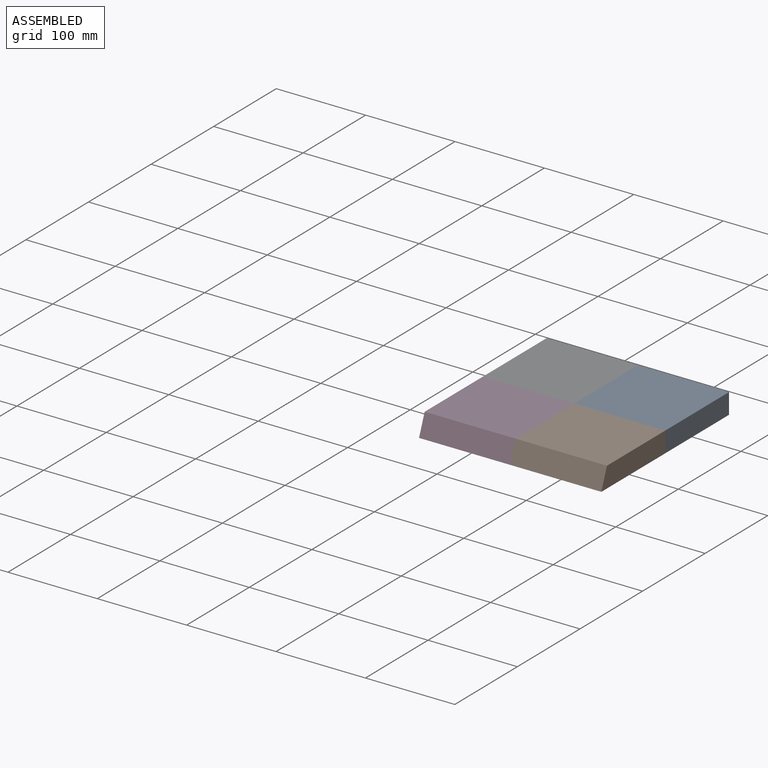
[diagram: assembled view]
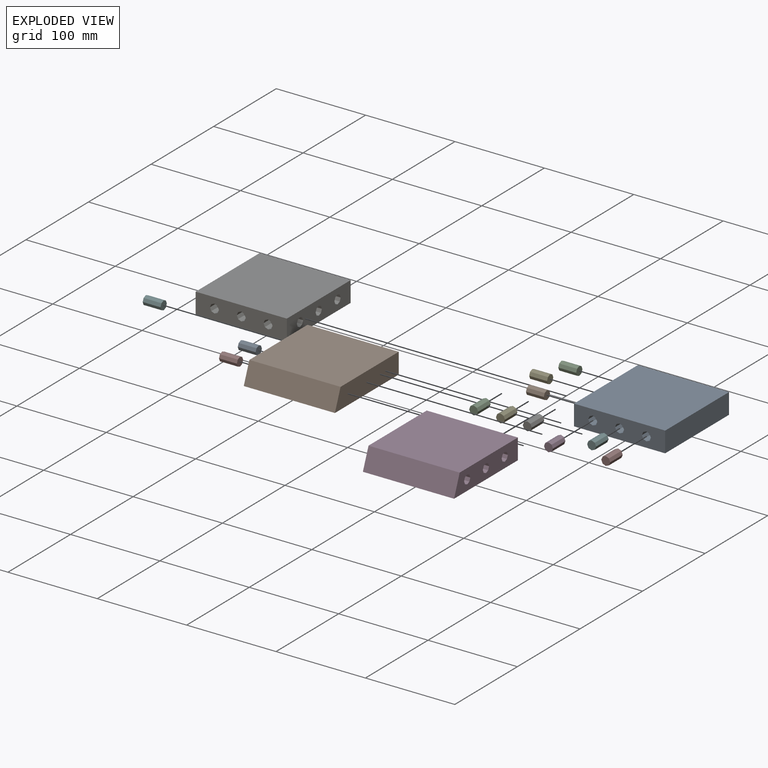
[diagram: exploded view]
GUIDED TOUR — MATED ASSEMBLY (Onshape document 5908cda357db5c10cc9995e8, AutoMate assembly 5908cda357db5c10cc9995e8_4f125725191da7e18022c977_9d6c4351536a8700f71dc5e9_default)

This assembly has 16 components, labeled P0..P15 below (a component is one placed occurrence of a part; the same part can appear more than once), held together by 15 mates. A mate is a constraint between two components; its type names the relative motion it leaves free:
  FASTENED — locks the two components together rigidly (no relative motion).
Axis/direction vectors are unit vectors and 'through' points are millimeter coordinates, both in the assembly's world frame.

MATES
  1. FASTENED "Fastened 12": P8 <-> P3, direction (-1.000, 0.000, 0.000) through (-61.00, -102.00, 0.00) mm
  2. FASTENED "Fastened 13": P13 <-> P3, direction (-1.000, 0.000, 0.000) through (-61.00, -72.00, 0.00) mm
  3. FASTENED "Fastened 4": P9 <-> P0, direction (1.000, 0.000, 0.000) through (-41.00, -30.00, 0.00) mm
  4. FASTENED "Fastened 7": P12 <-> P6, direction (-1.000, 0.000, 0.000) through (-61.00, 0.00, 0.00) mm
  5. FASTENED "Fastened 1": P11 <-> P0, direction (0.000, 1.000, 0.000) through (-30.00, -41.00, 0.00) mm
  6. FASTENED "Fastened 14": P8 <-> P1, direction (1.000, 0.000, 0.000) through (-41.00, -102.00, 0.00) mm
  7. FASTENED "Fastened 15": P4 <-> P3, direction (0.000, -1.000, 0.000) through (-102.00, -61.00, 0.00) mm
  8. FASTENED "Fastened 2": P5 <-> P0, direction (0.000, 1.000, 0.000) through (0.00, -41.00, 0.00) mm
  9. FASTENED "Fastened 11": P15 <-> P3, direction (-1.000, 0.000, 0.000) through (-61.00, -132.00, 0.00) mm
  10. FASTENED "Fastened 5": P12 <-> P0, direction (1.000, 0.000, 0.000) through (-41.00, 0.00, 0.00) mm
  11. FASTENED "Fastened 8": P14 <-> P6, direction (0.000, 1.000, 0.000) through (-72.00, -41.00, 0.00) mm
  12. FASTENED "Fastened 9": P4 <-> P6, direction (0.000, 1.000, 0.000) through (-102.00, -41.00, 0.00) mm
  13. FASTENED "Fastened 10": P10 <-> P6, direction (0.000, 1.000, 0.000) through (-132.00, -41.00, 0.00) mm
  14. FASTENED "Fastened 6": P2 <-> P0, direction (1.000, 0.000, 0.000) through (-41.00, 30.00, 0.00) mm
  15. FASTENED "Fastened 3": P7 <-> P0, direction (0.000, 1.000, 0.000) through (30.00, -41.00, 0.00) mm

ASSEMBLY ORDER
  1. P0 — the base component [order heuristic]
  2. P2 [order heuristic]
  3. P5 [order heuristic]
  4. P7 [order heuristic]
  5. P9 [order heuristic]
  6. P11 [order heuristic]
  7. P12 [order heuristic]
  8. P6 [order heuristic]
  9. P4 [order heuristic]
  10. P10 [order heuristic]
  11. P14 [order heuristic]
  12. P3 [order heuristic]
  13. P8 [order heuristic]
  14. P13 [order heuristic]
  15. P15 [order heuristic]
  16. P1 [order heuristic]
Order-tag legend:
  [order heuristic] — this assembly is geometrically interlocked (no collision-free removal order exists), so components are listed in mate-graph order; insertion feasibility is not verified.

Of the 16 components, 16 carry the full construction recipe — the FeatureScript program that regenerates the part's solid from scratch; the rest are supplied as boundary geometry only.
Because this assembly has more than 12 components, the tour below covers the 12 most significant ones individually (every recipe-attached component first, then the largest by part volume), in assembly order; the remaining 4 are summarized together in a grouped section at the end.
Each toured component is shown spotlighted twice — in the assembled view, then in the exploded view, where a leader line traces a displaced component back to its assembled socket (saturated green if recipe-attached, orange if geometry-only; every other component desaturated gray) — followed by its recipe or geometry summary and the mates that hold it.
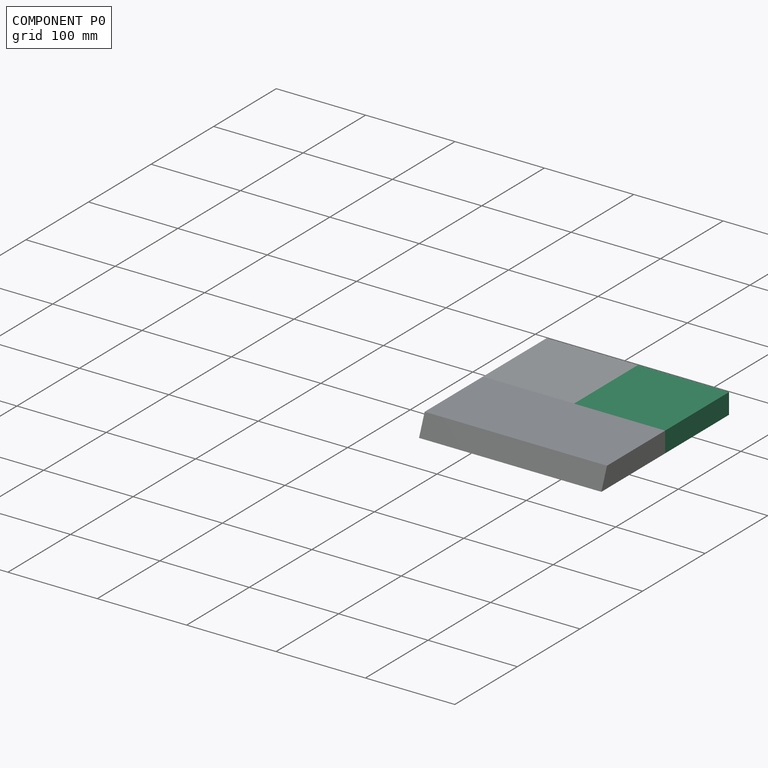
[diagram: component P0 — assembled]
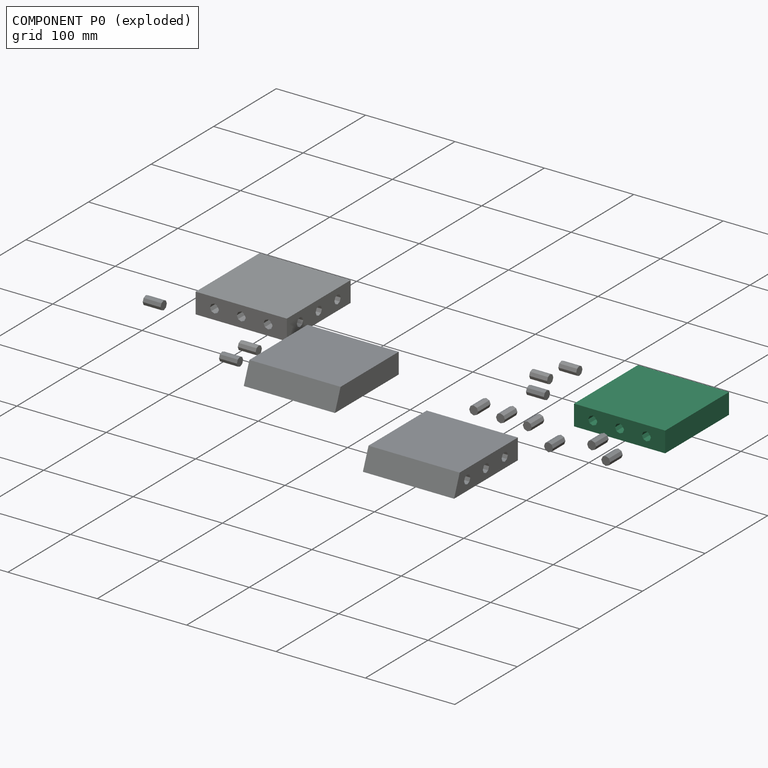
[diagram: component P0 — exploded]
COMPONENT P0 — recipe-attached (CADFS 00762724, mesh-verified: the recipe's output STEP matches this component's geometry to below the mesh-comparison resolution (tessellation chordal tolerance ~0.219 mm)).
Held by: FASTENED mate "Fastened 4" to P9; FASTENED mate "Fastened 1" to P11; FASTENED mate "Fastened 2" to P5; FASTENED mate "Fastened 5" to P12; FASTENED mate "Fastened 6" to P2; FASTENED mate "Fastened 3" to P7.
Construction recipe (FeatureScript — the CAD program that rebuilds this solid; sketch coordinates are in the units given by the * unit suffixes, e.g. mm):

FeatureScript 1511;
import(path : "onshape/std/geometry.fs", version : "1511.0");
import(path : "onshape/std/common.fs", version : "1511.0");
const mm = millimeter;
const VERTEX = EntityType.VERTEX;
const EDGE = EntityType.EDGE;
const FACE = EntityType.FACE;
const BODY = EntityType.BODY;
function v(x, y){return vector(x, y);}
function OD(order){return orderDisambiguation(order);}
function OSD(set){return originalSetDisambiguation(set);}
function TD(topology){return topologyDisambiguation(topology);}
function TDD(query){return trueDependencyDisambiguation(query);}
function sQuery(a, b, c) {return sketchEntityQuery(a, b, c);}

annotation { "Feature Type Name" : "Feature", "Feature Type Description" : "" }
export const myFeature = defineFeature(function(context is Context, id is Id, definition is map)
    precondition{}
    {
        {
            var Q0;
            Q0=qCreatedBy(makeId("Right.planeOp"),FACE);
            var sketch = newSketch(context, id + "F0", { "sketchPlane" : qUnion([Q0])});
            skLineSegment(sketch, "E0.bottom", {"start": v(51, -11.5) * mm, "end": v(-51, -11.5) * mm});
            skLineSegment(sketch, "E0.top", {"start": v(51, 11.5) * mm, "end": v(-51, 11.5) * mm});
            skLineSegment(sketch, "E0.left", {"start": v(51, -11.5) * mm, "end": v(51, 11.5) * mm});
            skLineSegment(sketch, "E0.right", {"start": v(-51, -11.5) * mm, "end": v(-51, 11.5) * mm});
            skPoint(sketch, "E0.middle", {"position": v(0, 0) * mm});
            skSolve(sketch);
        }
        {
            var Q0;
            Q0 = qSketchRegion(id + "F0", true);
            extrude(context, id + "F1", {"entities" : qUnion([Q0]), "endBound" : BoundingType.SYMMETRIC, "depth" : 102 * mm, "offsetDistance" : 25 * mm});
        }
        {
            var Q0;
            Q0=makeQuery(id+"F1.opExtrude","SWEPT_FACE",FACE,{"disambiguationData":[OSD([sQuery(id+"F0.wireOp",EDGE,"E0.right")])]});
            var sketch = newSketch(context, id + "F2", { "sketchPlane" : qUnion([Q0])});
            skCircle(sketch, "E1", {"center": v(0, 0) * mm, "radius": 5 * mm, "construction": true});
            skLineSegment(sketch, "E2.0", {"start": v(5, 0) * mm, "end": v(3.54, -3.54) * mm});
            skLineSegment(sketch, "E2.1", {"start": v(3.54, -3.54) * mm, "end": v(0, -5) * mm});
            skLineSegment(sketch, "E2.2", {"start": v(0, -5) * mm, "end": v(-3.54, -3.54) * mm});
            skLineSegment(sketch, "E2.3", {"start": v(-3.54, -3.54) * mm, "end": v(-5, 0) * mm});
            skLineSegment(sketch, "E2.4", {"start": v(-5, 0) * mm, "end": v(-3.54, 3.54) * mm});
            skLineSegment(sketch, "E2.5", {"start": v(-3.54, 3.54) * mm, "end": v(0, 5) * mm});
            skLineSegment(sketch, "E2.6", {"start": v(0, 5) * mm, "end": v(3.54, 3.54) * mm});
            skLineSegment(sketch, "E2.7", {"start": v(3.54, 3.54) * mm, "end": v(5, 0) * mm});
            skLineSegment(sketch, "E3.1.0.0", {"start": v(30, 5) * mm, "end": v(33.54, 3.54) * mm});
            skLineSegment(sketch, "E3.1.0.1", {"start": v(26.46, 3.54) * mm, "end": v(30, 5) * mm});
            skLineSegment(sketch, "E3.1.0.2", {"start": v(25, 0) * mm, "end": v(26.46, 3.54) * mm});
            skLineSegment(sketch, "E3.1.0.3", {"start": v(26.46, -3.54) * mm, "end": v(25, 0) * mm});
            skLineSegment(sketch, "E3.1.0.4", {"start": v(30, -5) * mm, "end": v(26.46, -3.54) * mm});
            skLineSegment(sketch, "E3.1.0.5", {"start": v(33.54, -3.54) * mm, "end": v(30, -5) * mm});
            skLineSegment(sketch, "E3.1.0.6", {"start": v(35, 0) * mm, "end": v(33.54, -3.54) * mm});
            skLineSegment(sketch, "E3.1.0.7", {"start": v(33.54, 3.54) * mm, "end": v(35, 0) * mm});
            skLineSegment(sketch, "E3.direction1", {"start": v(0, 5) * mm, "end": v(30, 5) * mm, "construction": true});
            skLineSegment(sketch, "E4.MirrorCS", {"start": v(-30, 5) * mm, "end": v(-33.54, 3.54) * mm});
            skLineSegment(sketch, "E5.MirrorCS", {"start": v(-33.54, 3.54) * mm, "end": v(-35, 0) * mm});
            skLineSegment(sketch, "E6.MirrorCS", {"start": v(-35, 0) * mm, "end": v(-33.54, -3.54) * mm});
            skLineSegment(sketch, "E7.MirrorCS", {"start": v(-33.54, -3.54) * mm, "end": v(-30, -5) * mm});
            skLineSegment(sketch, "E8.MirrorCS", {"start": v(-30, -5) * mm, "end": v(-26.46, -3.54) * mm});
            skLineSegment(sketch, "E9.MirrorCS", {"start": v(-26.46, -3.54) * mm, "end": v(-25, 0) * mm});
            skLineSegment(sketch, "E10.MirrorCS", {"start": v(-26.46, 3.54) * mm, "end": v(-30, 5) * mm});
            skLineSegment(sketch, "E11.MirrorCS", {"start": v(-25, 0) * mm, "end": v(-26.46, 3.54) * mm});
            skSolve(sketch);
        }
        {
            var Q0;
            Q0 = qSketchRegion(id + "F2", true);
            extrude(context, id + "F3", {"entities" : qUnion([Q0]), "operationType" : NewBodyOperationType.REMOVE, "oppositeDirection" : true, "depth" : 10 * mm, "offsetDistance" : 25 * mm});
        }
        {
            var Q0;
            Q0=makeQuery(id+"F1.opExtrude","CAP_FACE",FACE,{"disambiguationData":[OSD([sQuery(id+"F0.wireOp",EDGE,"E0.bottom"),sQuery(id+"F0.wireOp",EDGE,"E0.top"),sQuery(id+"F0.wireOp",EDGE,"E0.left"),sQuery(id+"F0.wireOp",EDGE,"E0.right")])],"isStart":true});
            var sketch = newSketch(context, id + "F4", { "sketchPlane" : qUnion([Q0])});
            skCircle(sketch, "E12.cCircle", {"center": v(0, 0) * mm, "radius": 5 * mm, "construction": true});
            skLineSegment(sketch, "E12.0", {"start": v(5, 0) * mm, "end": v(3.54, -3.54) * mm});
            skLineSegment(sketch, "E12.1", {"start": v(3.54, -3.54) * mm, "end": v(0, -5) * mm});
            skLineSegment(sketch, "E12.2", {"start": v(0, -5) * mm, "end": v(-3.54, -3.54) * mm});
            skLineSegment(sketch, "E12.3", {"start": v(-3.54, -3.54) * mm, "end": v(-5, 0) * mm});
            skLineSegment(sketch, "E12.4", {"start": v(-5, 0) * mm, "end": v(-3.54, 3.54) * mm});
            skLineSegment(sketch, "E12.5", {"start": v(-3.54, 3.54) * mm, "end": v(0, 5) * mm});
            skLineSegment(sketch, "E12.6", {"start": v(0, 5) * mm, "end": v(3.54, 3.54) * mm});
            skLineSegment(sketch, "E12.7", {"start": v(3.54, 3.54) * mm, "end": v(5, 0) * mm});
            skLineSegment(sketch, "E13.1.0.0", {"start": v(26.46, 3.54) * mm, "end": v(30, 5) * mm});
            skLineSegment(sketch, "E13.1.0.1", {"start": v(30, 5) * mm, "end": v(33.54, 3.54) * mm});
            skLineSegment(sketch, "E13.1.0.2", {"start": v(33.54, 3.54) * mm, "end": v(35, 0) * mm});
            skLineSegment(sketch, "E13.1.0.3", {"start": v(35, 0) * mm, "end": v(33.54, -3.54) * mm});
            skLineSegment(sketch, "E13.1.0.4", {"start": v(33.54, -3.54) * mm, "end": v(30, -5) * mm});
            skLineSegment(sketch, "E13.1.0.5", {"start": v(30, -5) * mm, "end": v(26.46, -3.54) * mm});
            skLineSegment(sketch, "E13.1.0.6", {"start": v(26.46, -3.54) * mm, "end": v(25, 0) * mm});
            skLineSegment(sketch, "E13.1.0.7", {"start": v(25, 0) * mm, "end": v(26.46, 3.54) * mm});
            skLineSegment(sketch, "E13.direction1", {"start": v(-3.54, 3.54) * mm, "end": v(26.46, 3.54) * mm, "construction": true});
            skLineSegment(sketch, "E14.MirrorCS", {"start": v(-26.46, 3.54) * mm, "end": v(-30, 5) * mm});
            skLineSegment(sketch, "E15.MirrorCS", {"start": v(-30, 5) * mm, "end": v(-33.54, 3.54) * mm});
            skLineSegment(sketch, "E16.MirrorCS", {"start": v(-33.54, 3.54) * mm, "end": v(-35, 0) * mm});
            skLineSegment(sketch, "E17.MirrorCS", {"start": v(-35, 0) * mm, "end": v(-33.54, -3.54) * mm});
            skLineSegment(sketch, "E18.MirrorCS", {"start": v(-33.54, -3.54) * mm, "end": v(-30, -5) * mm});
            skLineSegment(sketch, "E19.MirrorCS", {"start": v(-30, -5) * mm, "end": v(-26.46, -3.54) * mm});
            skLineSegment(sketch, "E20.MirrorCS", {"start": v(-26.46, -3.54) * mm, "end": v(-25, 0) * mm});
            skLineSegment(sketch, "E21.MirrorCS", {"start": v(-25, 0) * mm, "end": v(-26.46, 3.54) * mm});
            skSolve(sketch);
        }
        {
            var Q0;
            Q0 = qSketchRegion(id + "F4", true);
            extrude(context, id + "F5", {"entities" : qUnion([Q0]), "operationType" : NewBodyOperationType.REMOVE, "oppositeDirection" : true, "depth" : 10 * mm, "offsetDistance" : 25 * mm});
        }
        {
            var Q0;
            Q0=makeQuery(id+"F1.opExtrude","SWEPT_BODY",BODY,{"disambiguationData":[OSD([sQuery(id+"F0.wireOp",EDGE,"E0.bottom"),sQuery(id+"F0.wireOp",EDGE,"E0.top"),sQuery(id+"F0.wireOp",EDGE,"E0.left"),sQuery(id+"F0.wireOp",EDGE,"E0.right")])]});
            transform(context, id + "F6", {"entities" : qUnion([Q0]), "transformType" : TransformType.TRANSLATION_3D, "dx" : 0 * mm, "dy" : 0 * mm, "dz" : 0 * mm, "makeCopy" : true});
        }
        {
            var Q0;
            Q0=makeQuery(id+"F6.opPattern","COPY",BODY,{"derivedFrom":makeQuery(id+"F1.opExtrude","SWEPT_BODY",BODY,{"disambiguationData":[OSD([sQuery(id+"F0.wireOp",EDGE,"E0.bottom"),sQuery(id+"F0.wireOp",EDGE,"E0.top"),sQuery(id+"F0.wireOp",EDGE,"E0.left"),sQuery(id+"F0.wireOp",EDGE,"E0.right")])]}),"instanceName":"1"});
            deleteBodies(context, id + "F7", {"entities" : qUnion([Q0])});
        }
    });
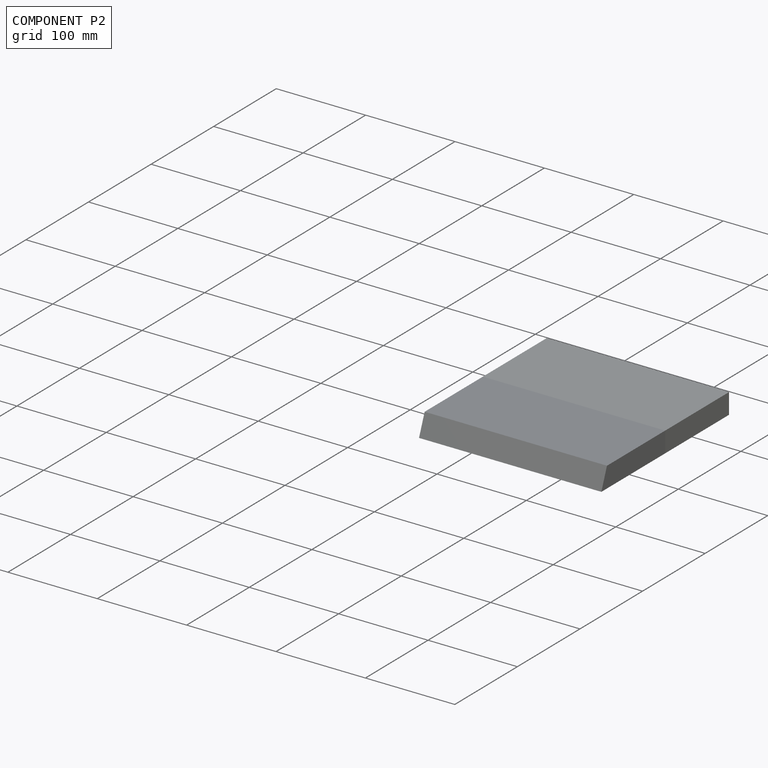
[diagram: component P2 — assembled]
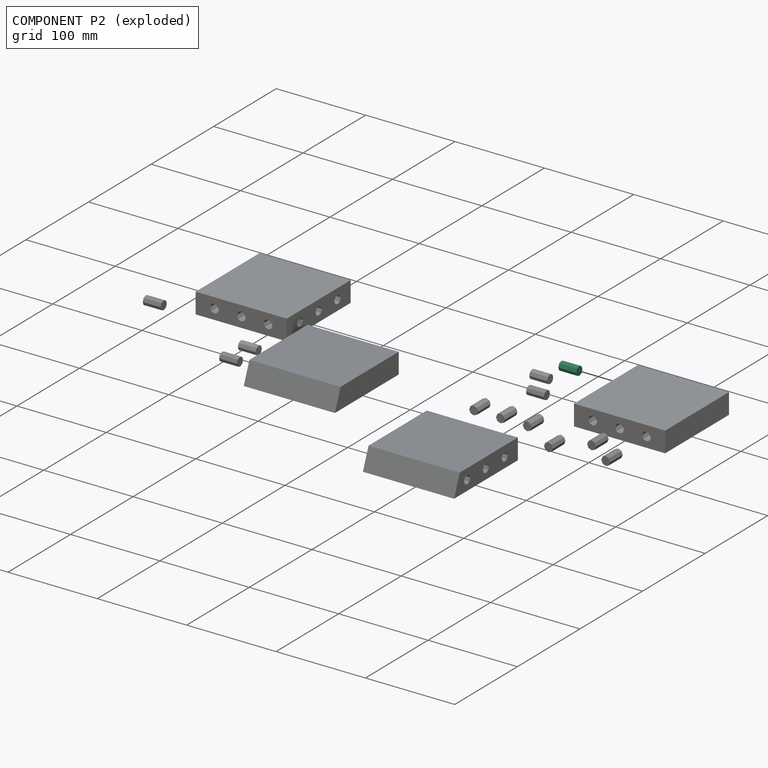
[diagram: component P2 — exploded]
COMPONENT P2 — recipe-attached (CADFS 00762725, mesh-verified: the recipe's output STEP matches this component's geometry to below the mesh-comparison resolution (tessellation chordal tolerance ~0.0367 mm)).
Held by: FASTENED mate "Fastened 6" to P0.
Construction recipe (FeatureScript — the CAD program that rebuilds this solid; sketch coordinates are in the units given by the * unit suffixes, e.g. mm):

FeatureScript 1511;
import(path : "onshape/std/geometry.fs", version : "1511.0");
import(path : "onshape/std/common.fs", version : "1511.0");
const mm = millimeter;
const VERTEX = EntityType.VERTEX;
const EDGE = EntityType.EDGE;
const FACE = EntityType.FACE;
const BODY = EntityType.BODY;
function v(x, y){return vector(x, y);}
function OD(order){return orderDisambiguation(order);}
function OSD(set){return originalSetDisambiguation(set);}
function TD(topology){return topologyDisambiguation(topology);}
function TDD(query){return trueDependencyDisambiguation(query);}
function sQuery(a, b, c) {return sketchEntityQuery(a, b, c);}

annotation { "Feature Type Name" : "Feature", "Feature Type Description" : "" }
export const myFeature = defineFeature(function(context is Context, id is Id, definition is map)
    precondition{}
    {
        {
            var Q0;
            Q0=qCreatedBy(makeId("Front.planeOp"),FACE);
            var sketch = newSketch(context, id + "F0", { "sketchPlane" : qUnion([Q0])});
            skCircle(sketch, "E0.cCircle", {"center": v(0, 0) * mm, "radius": 5 * mm, "construction": true});
            skLineSegment(sketch, "E0.0", {"start": v(0, -5) * mm, "end": v(-3.54, -3.54) * mm});
            skLineSegment(sketch, "E0.1", {"start": v(-3.54, -3.54) * mm, "end": v(-5, 0) * mm});
            skLineSegment(sketch, "E0.2", {"start": v(-5, 0) * mm, "end": v(-3.54, 3.54) * mm});
            skLineSegment(sketch, "E0.3", {"start": v(-3.54, 3.54) * mm, "end": v(0, 5) * mm});
            skLineSegment(sketch, "E0.4", {"start": v(0, 5) * mm, "end": v(3.54, 3.54) * mm});
            skLineSegment(sketch, "E0.5", {"start": v(3.54, 3.54) * mm, "end": v(5, 0) * mm});
            skLineSegment(sketch, "E0.6", {"start": v(5, 0) * mm, "end": v(3.54, -3.54) * mm});
            skLineSegment(sketch, "E0.7", {"start": v(3.54, -3.54) * mm, "end": v(0, -5) * mm});
            skSolve(sketch);
        }
        {
            var Q0;
            Q0=makeQuery(id+"F0.imprint","IMPRINT",FACE,{"disambiguationData":[TD([[makeQuery(id+"F0.imprint","IMPRINT",EDGE,{"derivedFrom":sQuery(id+"F0.wireOp",EDGE,"E0.0")}),-1.0]])]});
            extrude(context, id + "F1", {"entities" : qUnion([Q0]), "endBound" : BoundingType.SYMMETRIC, "depth" : 20 * mm, "offsetDistance" : 25 * mm});
        }
    });
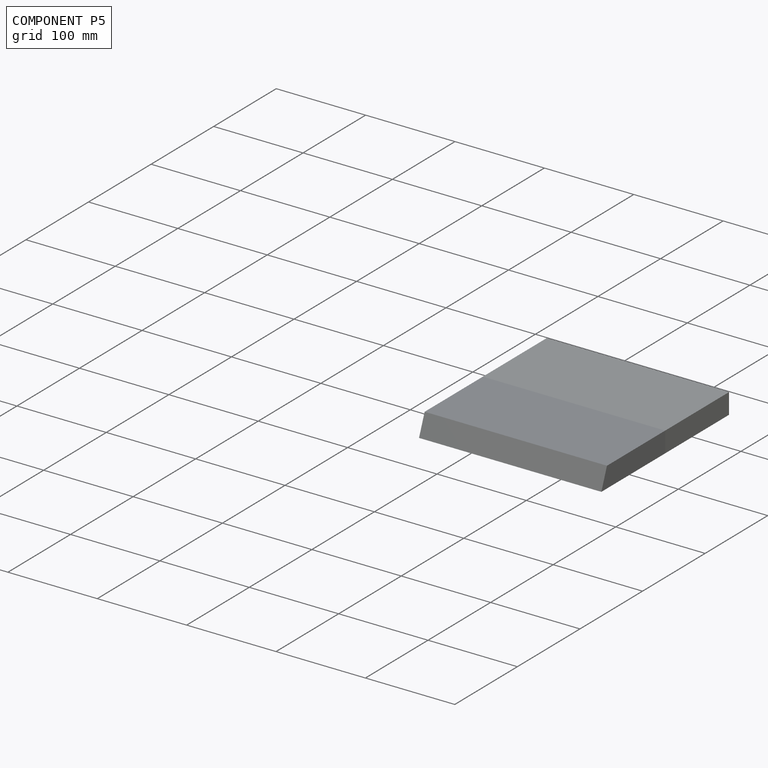
[diagram: component P5 — assembled]
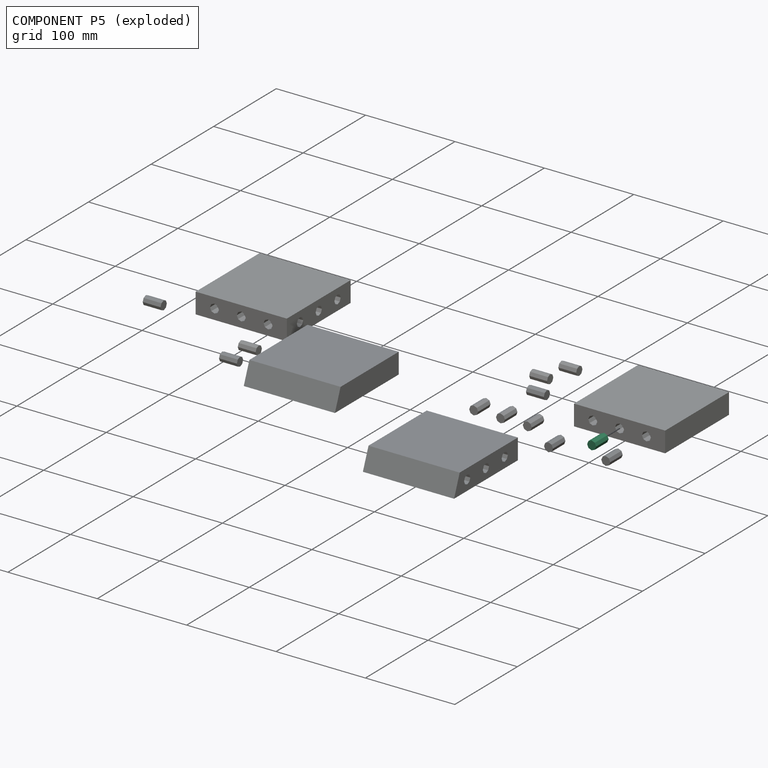
[diagram: component P5 — exploded]
COMPONENT P5 — same part as P2 (CADFS 00762725); its construction recipe is shown at P2.
Held by: FASTENED mate "Fastened 2" to P0.
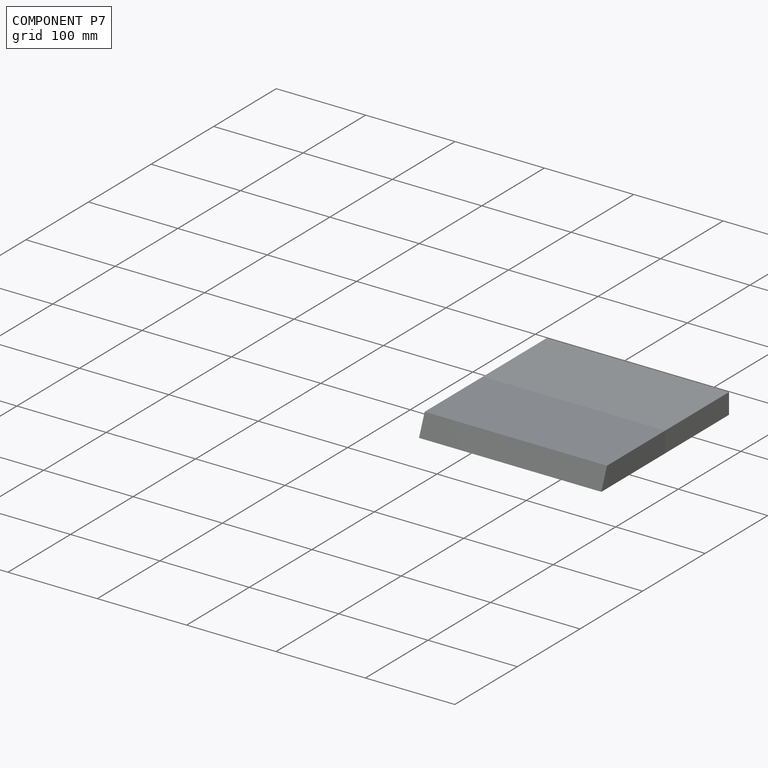
[diagram: component P7 — assembled]
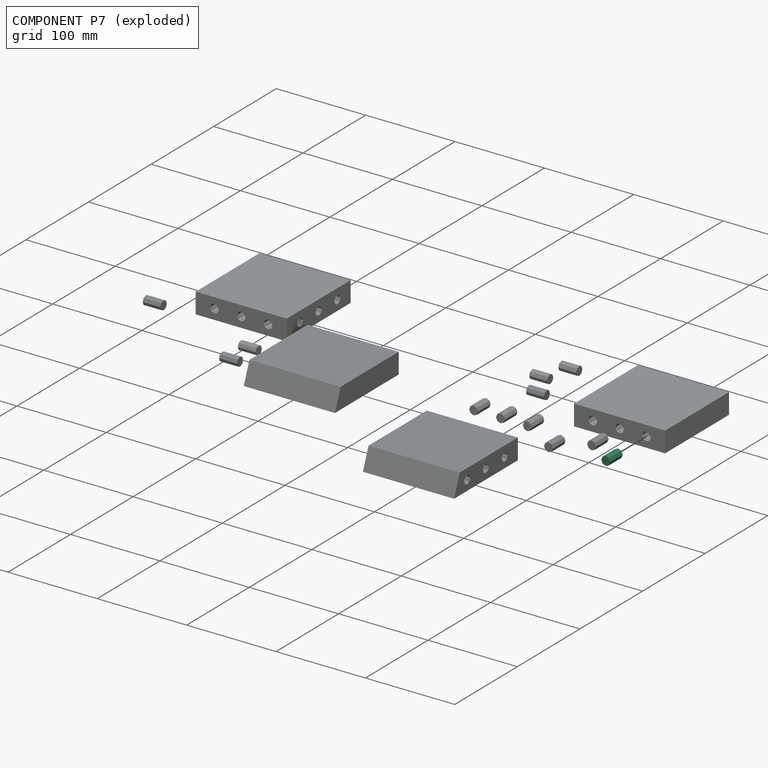
[diagram: component P7 — exploded]
COMPONENT P7 — same part as P2 (CADFS 00762725); its construction recipe is shown at P2.
Held by: FASTENED mate "Fastened 3" to P0.
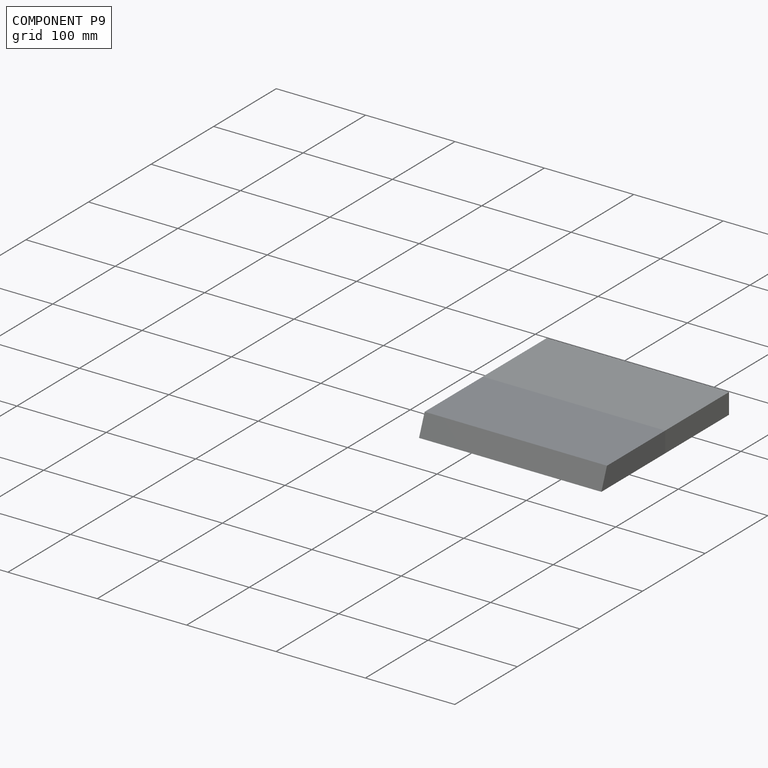
[diagram: component P9 — assembled]
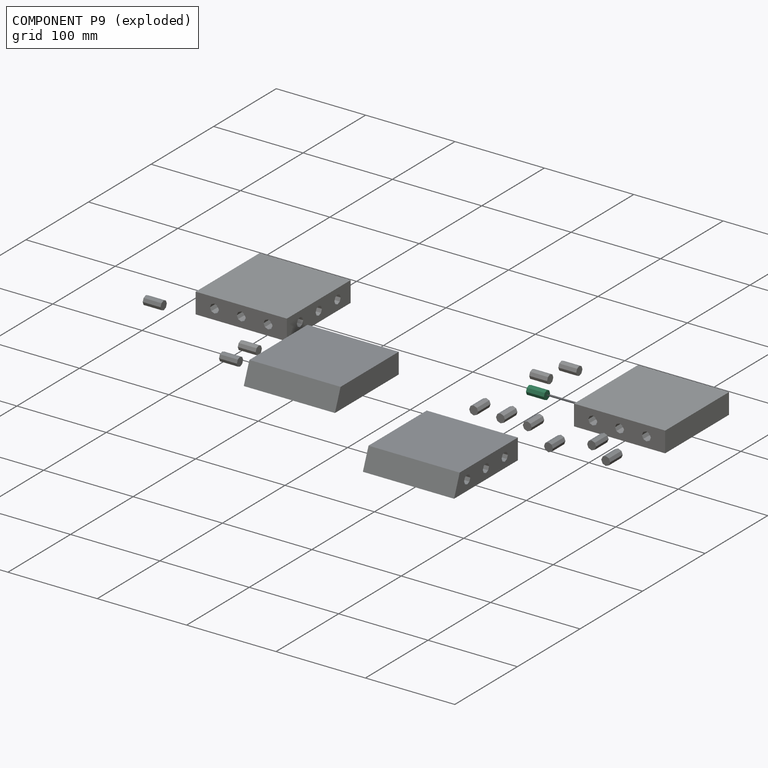
[diagram: component P9 — exploded]
COMPONENT P9 — same part as P2 (CADFS 00762725); its construction recipe is shown at P2.
Held by: FASTENED mate "Fastened 4" to P0.
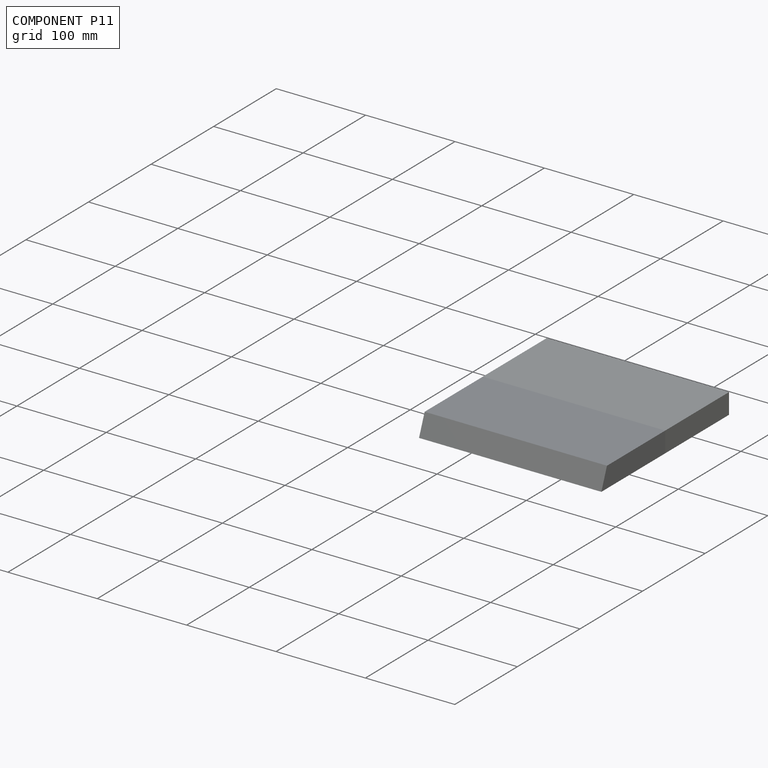
[diagram: component P11 — assembled]
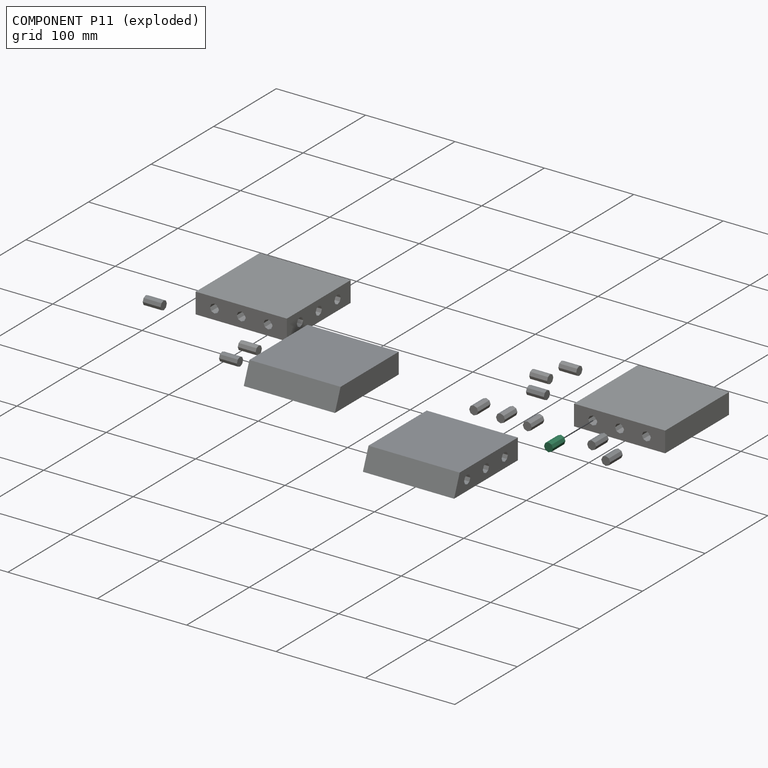
[diagram: component P11 — exploded]
COMPONENT P11 — same part as P2 (CADFS 00762725); its construction recipe is shown at P2.
Held by: FASTENED mate "Fastened 1" to P0.
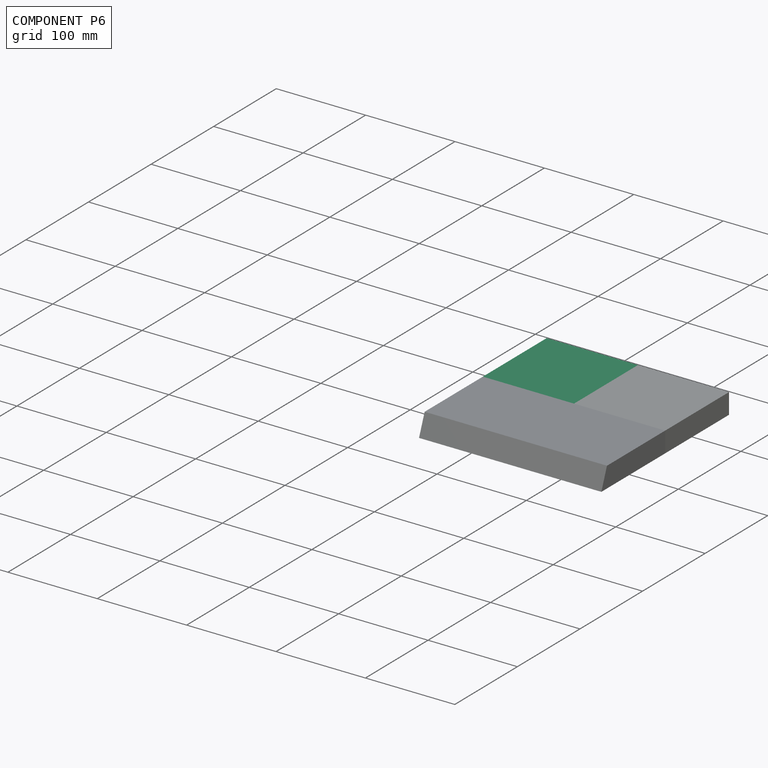
[diagram: component P6 — assembled]
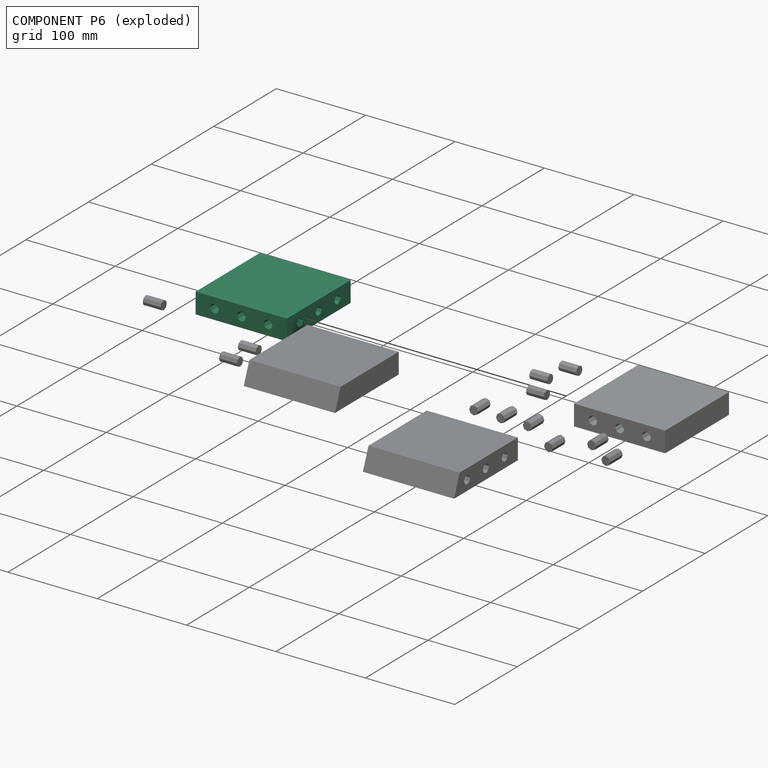
[diagram: component P6 — exploded]
COMPONENT P6 — same part as P0 (CADFS 00762724); its construction recipe is shown at P0.
Held by: FASTENED mate "Fastened 7" to P12; FASTENED mate "Fastened 8" to P14; FASTENED mate "Fastened 9" to P4; FASTENED mate "Fastened 10" to P10.
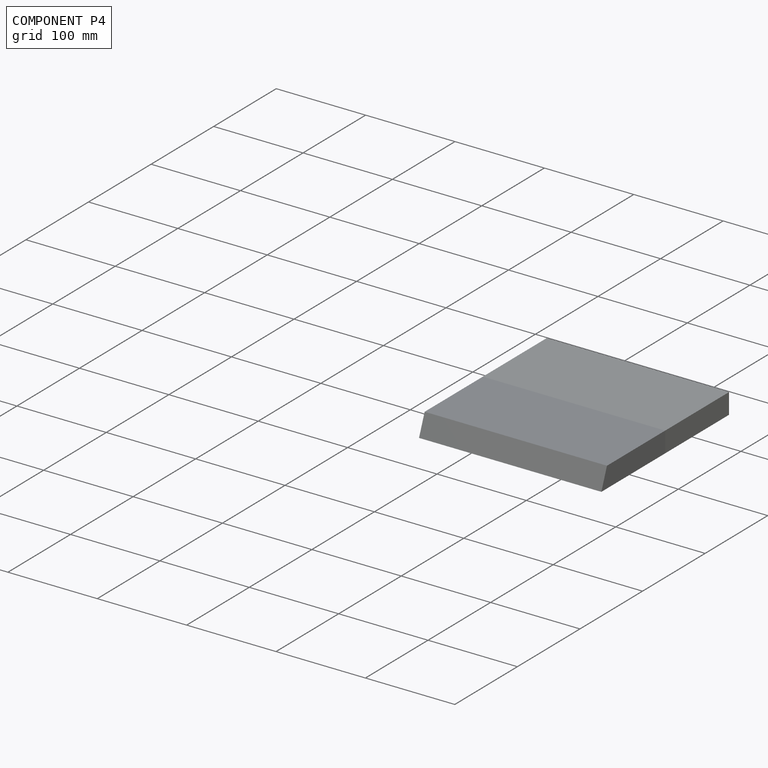
[diagram: component P4 — assembled]
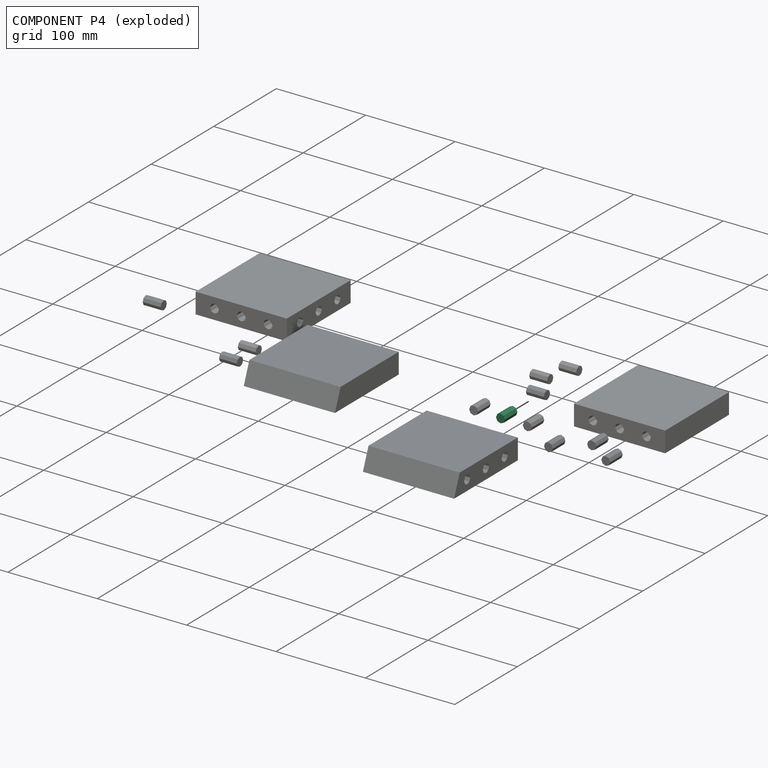
[diagram: component P4 — exploded]
COMPONENT P4 — same part as P2 (CADFS 00762725); its construction recipe is shown at P2.
Held by: FASTENED mate "Fastened 15" to P3; FASTENED mate "Fastened 9" to P6.
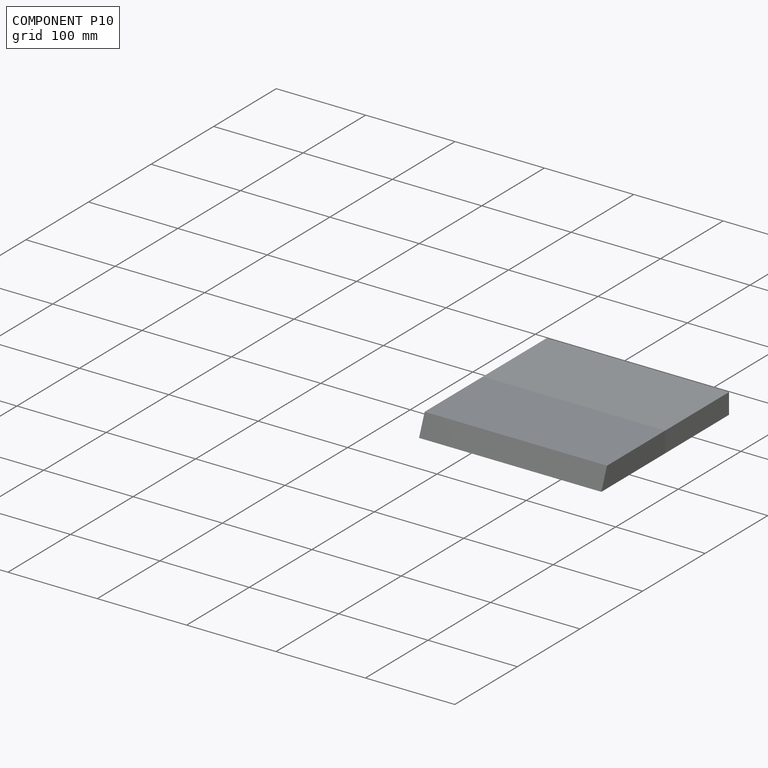
[diagram: component P10 — assembled]
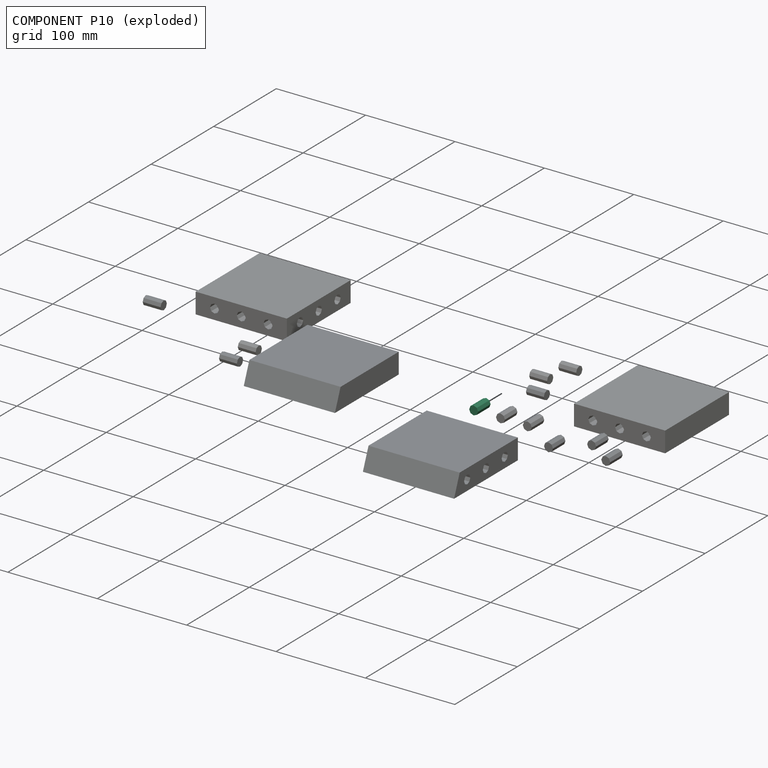
[diagram: component P10 — exploded]
COMPONENT P10 — same part as P2 (CADFS 00762725); its construction recipe is shown at P2.
Held by: FASTENED mate "Fastened 10" to P6.
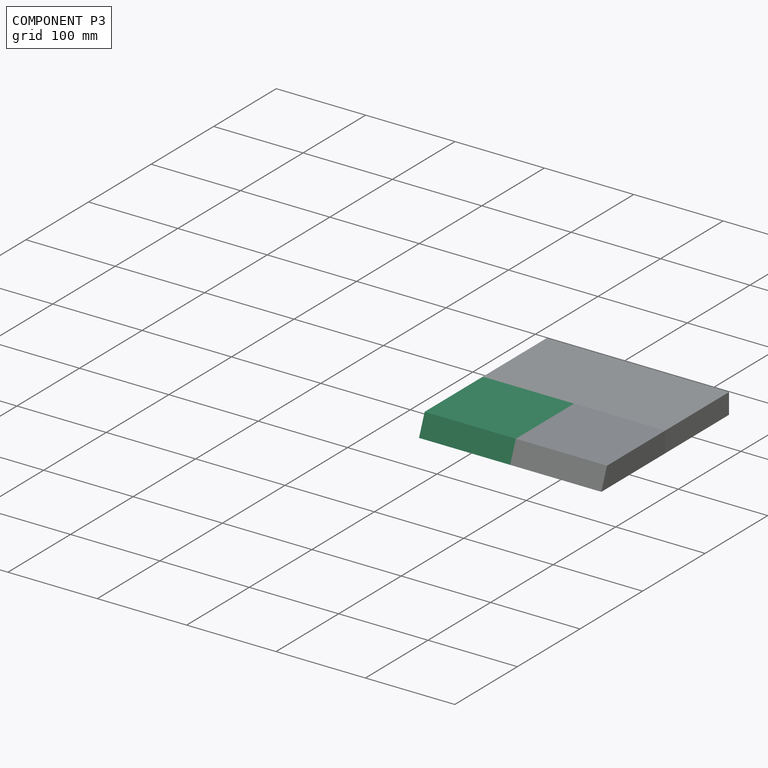
[diagram: component P3 — assembled]
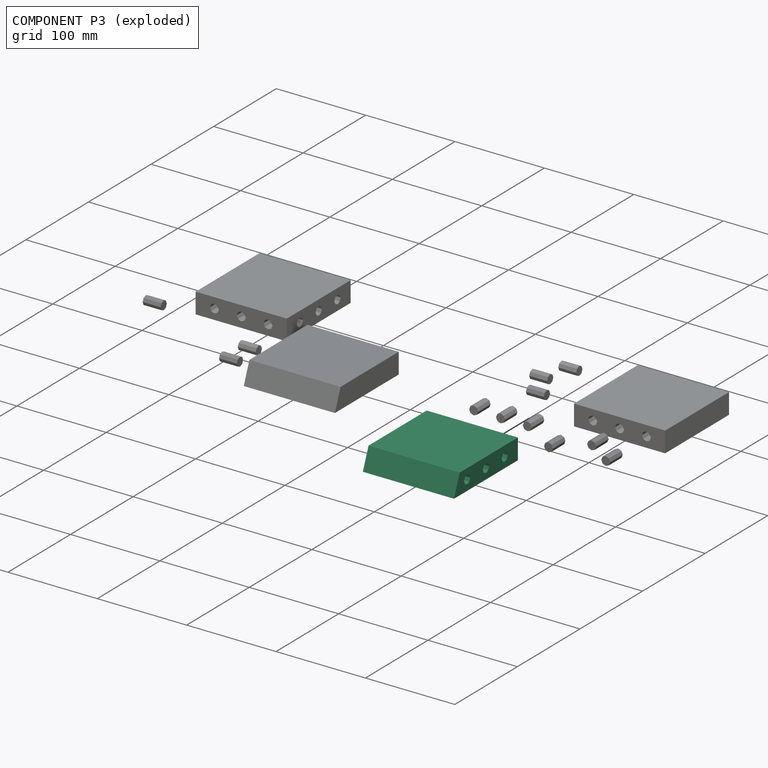
[diagram: component P3 — exploded]
COMPONENT P3 — recipe-attached (CADFS 00762722, mesh-verified: the recipe's output STEP matches this component's geometry to below the mesh-comparison resolution (tessellation chordal tolerance ~0.219 mm)).
Held by: FASTENED mate "Fastened 12" to P8; FASTENED mate "Fastened 13" to P13; FASTENED mate "Fastened 15" to P4; FASTENED mate "Fastened 11" to P15.
Construction recipe (FeatureScript — the CAD program that rebuilds this solid; sketch coordinates are in the units given by the * unit suffixes, e.g. mm):

FeatureScript 1511;
import(path : "onshape/std/geometry.fs", version : "1511.0");
import(path : "onshape/std/common.fs", version : "1511.0");
const mm = millimeter;
const VERTEX = EntityType.VERTEX;
const EDGE = EntityType.EDGE;
const FACE = EntityType.FACE;
const BODY = EntityType.BODY;
function v(x, y){return vector(x, y);}
function OD(order){return orderDisambiguation(order);}
function OSD(set){return originalSetDisambiguation(set);}
function TD(topology){return topologyDisambiguation(topology);}
function TDD(query){return trueDependencyDisambiguation(query);}
function sQuery(a, b, c) {return sketchEntityQuery(a, b, c);}

annotation { "Feature Type Name" : "Feature", "Feature Type Description" : "" }
export const myFeature = defineFeature(function(context is Context, id is Id, definition is map)
    precondition{}
    {
        {
            var Q0;
            Q0=qCreatedBy(makeId("Right.planeOp"),FACE);
            var sketch = newSketch(context, id + "F0", { "sketchPlane" : qUnion([Q0])});
            skLineSegment(sketch, "E0.bottom", {"start": v(51, -11.5) * mm, "end": v(-51, -11.5) * mm});
            skLineSegment(sketch, "E0.top", {"start": v(51, 11.5) * mm, "end": v(-42, 11.5) * mm});
            skLineSegment(sketch, "E0.left", {"start": v(51, -11.5) * mm, "end": v(51, 11.5) * mm});
            skPoint(sketch, "E0.middle", {"position": v(0, 0) * mm});
            skLineSegment(sketch, "E1", {"start": v(-42, 11.5) * mm, "end": v(-51, -11.5) * mm});
            skPoint(sketch, "E0.right.end.orphan", {"position": v(-51, 11.5) * mm});
            skSolve(sketch);
        }
        {
            var Q0;
            Q0 = qSketchRegion(id + "F0", true);
            extrude(context, id + "F1", {"entities" : qUnion([Q0]), "endBound" : BoundingType.SYMMETRIC, "depth" : 102 * mm, "offsetDistance" : 25 * mm});
        }
        {
            var Q0;
            Q0=makeQuery(id+"F1.opExtrude","SWEPT_FACE",FACE,{"disambiguationData":[OSD([sQuery(id+"F0.wireOp",EDGE,"E0.left")])]});
            var sketch = newSketch(context, id + "F2", { "sketchPlane" : qUnion([Q0])});
            skCircle(sketch, "E2.cCircle", {"center": v(0, 0) * mm, "radius": 5 * mm, "construction": true});
            skLineSegment(sketch, "E2.0", {"start": v(0, -5) * mm, "end": v(-3.54, -3.54) * mm});
            skLineSegment(sketch, "E2.1", {"start": v(-3.54, -3.54) * mm, "end": v(-5, 0) * mm});
            skLineSegment(sketch, "E2.2", {"start": v(-5, 0) * mm, "end": v(-3.54, 3.54) * mm});
            skLineSegment(sketch, "E2.3", {"start": v(-3.54, 3.54) * mm, "end": v(0, 5) * mm});
            skLineSegment(sketch, "E2.4", {"start": v(0, 5) * mm, "end": v(3.54, 3.54) * mm});
            skLineSegment(sketch, "E2.5", {"start": v(3.54, 3.54) * mm, "end": v(5, 0) * mm});
            skLineSegment(sketch, "E2.6", {"start": v(5, 0) * mm, "end": v(3.54, -3.54) * mm});
            skLineSegment(sketch, "E2.7", {"start": v(3.54, -3.54) * mm, "end": v(0, -5) * mm});
            skLineSegment(sketch, "E3.1.0.0", {"start": v(30, 5) * mm, "end": v(33.54, 3.54) * mm});
            skLineSegment(sketch, "E3.1.0.1", {"start": v(33.54, 3.54) * mm, "end": v(35, 0) * mm});
            skLineSegment(sketch, "E3.1.0.2", {"start": v(35, 0) * mm, "end": v(33.54, -3.54) * mm});
            skLineSegment(sketch, "E3.1.0.3", {"start": v(33.54, -3.54) * mm, "end": v(30, -5) * mm});
            skLineSegment(sketch, "E3.1.0.4", {"start": v(30, -5) * mm, "end": v(26.46, -3.54) * mm});
            skLineSegment(sketch, "E3.1.0.5", {"start": v(26.46, -3.54) * mm, "end": v(25, 0) * mm});
            skLineSegment(sketch, "E3.1.0.6", {"start": v(25, 0) * mm, "end": v(26.46, 3.54) * mm});
            skLineSegment(sketch, "E3.1.0.7", {"start": v(26.46, 3.54) * mm, "end": v(30, 5) * mm});
            skLineSegment(sketch, "E3.direction1", {"start": v(0, 5) * mm, "end": v(30, 5) * mm, "construction": true});
            skLineSegment(sketch, "E4.MirrorCS", {"start": v(-26.46, 3.54) * mm, "end": v(-30, 5) * mm});
            skLineSegment(sketch, "E5.MirrorCS", {"start": v(-25, 0) * mm, "end": v(-26.46, 3.54) * mm});
            skLineSegment(sketch, "E6.MirrorCS", {"start": v(-26.46, -3.54) * mm, "end": v(-25, 0) * mm});
            skLineSegment(sketch, "E7.MirrorCS", {"start": v(-30, -5) * mm, "end": v(-26.46, -3.54) * mm});
            skLineSegment(sketch, "E8.MirrorCS", {"start": v(-33.54, -3.54) * mm, "end": v(-30, -5) * mm});
            skLineSegment(sketch, "E9.MirrorCS", {"start": v(-35, 0) * mm, "end": v(-33.54, -3.54) * mm});
            skLineSegment(sketch, "E10.MirrorCS", {"start": v(-33.54, 3.54) * mm, "end": v(-35, 0) * mm});
            skLineSegment(sketch, "E11.MirrorCS", {"start": v(-30, 5) * mm, "end": v(-33.54, 3.54) * mm});
            skSolve(sketch);
        }
        {
            var Q0;
            Q0 = qSketchRegion(id + "F2", true);
            extrude(context, id + "F3", {"entities" : qUnion([Q0]), "operationType" : NewBodyOperationType.REMOVE, "oppositeDirection" : true, "depth" : 10 * mm, "offsetDistance" : 25 * mm});
        }
        {
            var Q0;
            Q0=makeQuery(id+"F1.opExtrude","CAP_FACE",FACE,{"disambiguationData":[OSD([sQuery(id+"F0.wireOp",EDGE,"E0.bottom"),sQuery(id+"F0.wireOp",EDGE,"E0.left"),sQuery(id+"F0.wireOp",EDGE,"E0.top"),sQuery(id+"F0.wireOp",EDGE,"E1")])],"isStart":true});
            var sketch = newSketch(context, id + "F4", { "sketchPlane" : qUnion([Q0])});
            skCircle(sketch, "E12.cCircle", {"center": v(0, 0) * mm, "radius": 5 * mm, "construction": true});
            skLineSegment(sketch, "E12.0", {"start": v(0, -5) * mm, "end": v(-3.54, -3.54) * mm});
            skLineSegment(sketch, "E12.1", {"start": v(-3.54, -3.54) * mm, "end": v(-5, 0) * mm});
            skLineSegment(sketch, "E12.2", {"start": v(-5, 0) * mm, "end": v(-3.54, 3.54) * mm});
            skLineSegment(sketch, "E12.3", {"start": v(-3.54, 3.54) * mm, "end": v(0, 5) * mm});
            skLineSegment(sketch, "E12.4", {"start": v(0, 5) * mm, "end": v(3.54, 3.54) * mm});
            skLineSegment(sketch, "E12.5", {"start": v(3.54, 3.54) * mm, "end": v(5, 0) * mm});
            skLineSegment(sketch, "E12.6", {"start": v(5, 0) * mm, "end": v(3.54, -3.54) * mm});
            skLineSegment(sketch, "E12.7", {"start": v(3.54, -3.54) * mm, "end": v(0, -5) * mm});
            skLineSegment(sketch, "E13.1.0.0", {"start": v(30, 5) * mm, "end": v(33.54, 3.54) * mm});
            skLineSegment(sketch, "E13.1.0.1", {"start": v(26.46, 3.54) * mm, "end": v(30, 5) * mm});
            skLineSegment(sketch, "E13.1.0.2", {"start": v(25, 0) * mm, "end": v(26.46, 3.54) * mm});
            skLineSegment(sketch, "E13.1.0.3", {"start": v(26.46, -3.54) * mm, "end": v(25, 0) * mm});
            skLineSegment(sketch, "E13.1.0.4", {"start": v(30, -5) * mm, "end": v(26.46, -3.54) * mm});
            skLineSegment(sketch, "E13.1.0.5", {"start": v(33.54, -3.54) * mm, "end": v(30, -5) * mm});
            skLineSegment(sketch, "E13.1.0.6", {"start": v(35, 0) * mm, "end": v(33.54, -3.54) * mm});
            skLineSegment(sketch, "E13.1.0.7", {"start": v(33.54, 3.54) * mm, "end": v(35, 0) * mm});
            skLineSegment(sketch, "E13.direction1", {"start": v(0, 5) * mm, "end": v(30, 5) * mm, "construction": true});
            skLineSegment(sketch, "E14.MirrorCS", {"start": v(-26.46, 3.54) * mm, "end": v(-30, 5) * mm});
            skLineSegment(sketch, "E15.MirrorCS", {"start": v(-30, 5) * mm, "end": v(-33.54, 3.54) * mm});
            skLineSegment(sketch, "E16.MirrorCS", {"start": v(-33.54, 3.54) * mm, "end": v(-35, 0) * mm});
            skLineSegment(sketch, "E17.MirrorCS", {"start": v(-35, 0) * mm, "end": v(-33.54, -3.54) * mm});
            skLineSegment(sketch, "E18.MirrorCS", {"start": v(-33.54, -3.54) * mm, "end": v(-30, -5) * mm});
            skLineSegment(sketch, "E19.MirrorCS", {"start": v(-30, -5) * mm, "end": v(-26.46, -3.54) * mm});
            skLineSegment(sketch, "E20.MirrorCS", {"start": v(-26.46, -3.54) * mm, "end": v(-25, 0) * mm});
            skLineSegment(sketch, "E21.MirrorCS", {"start": v(-25, 0) * mm, "end": v(-26.46, 3.54) * mm});
            skSolve(sketch);
        }
        {
            var Q0;
            Q0 = qSketchRegion(id + "F4", true);
            extrude(context, id + "F5", {"entities" : qUnion([Q0]), "operationType" : NewBodyOperationType.REMOVE, "oppositeDirection" : true, "depth" : 10 * mm, "offsetDistance" : 25 * mm});
        }
    });
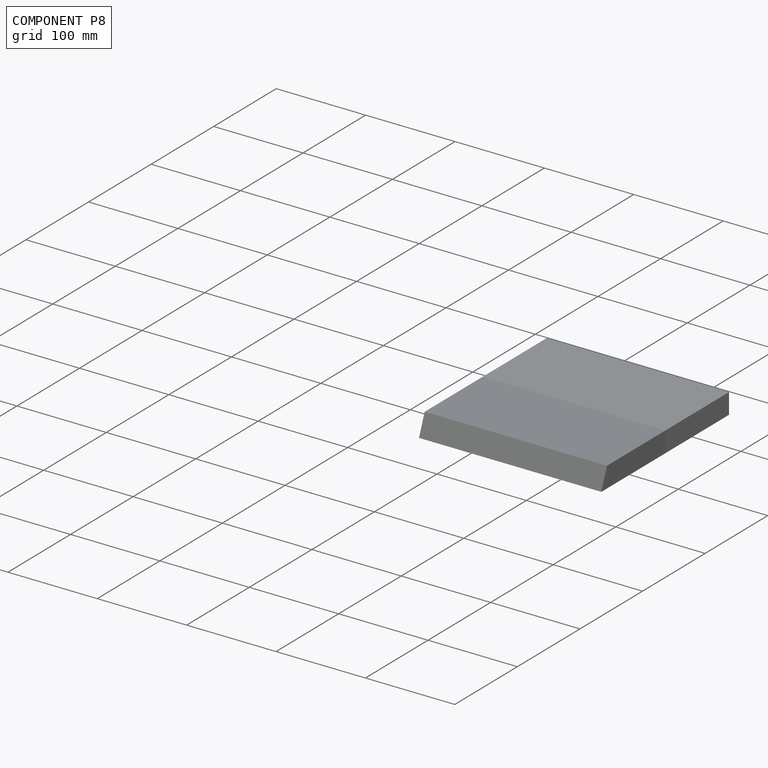
[diagram: component P8 — assembled]
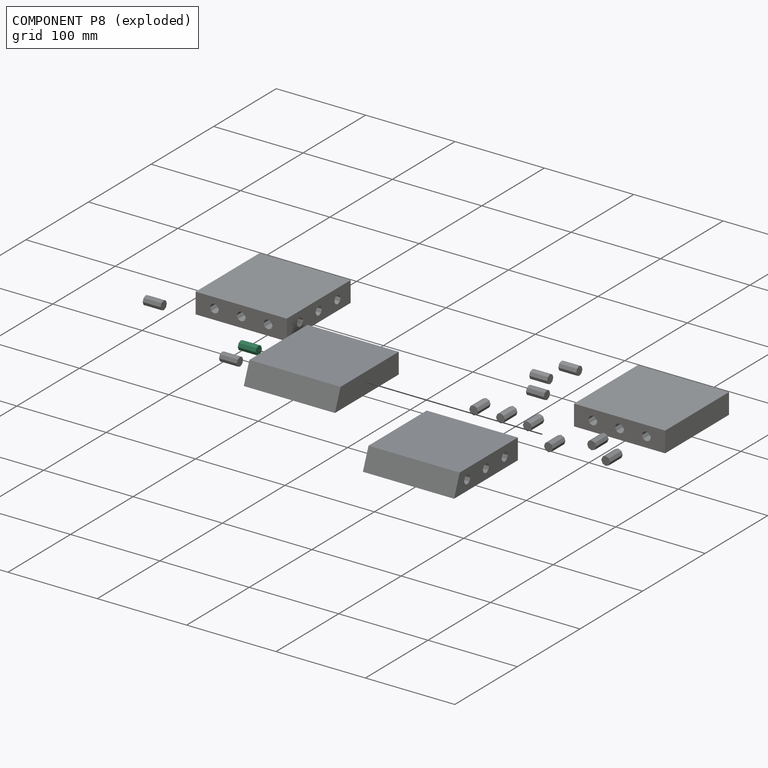
[diagram: component P8 — exploded]
COMPONENT P8 — same part as P2 (CADFS 00762725); its construction recipe is shown at P2.
Held by: FASTENED mate "Fastened 12" to P3; FASTENED mate "Fastened 14" to P1.
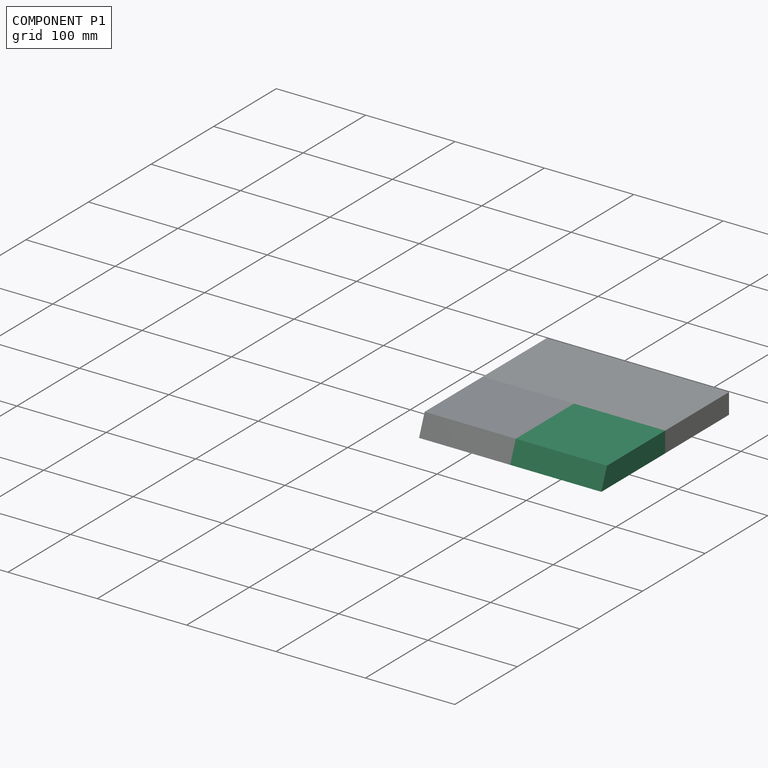
[diagram: component P1 — assembled]
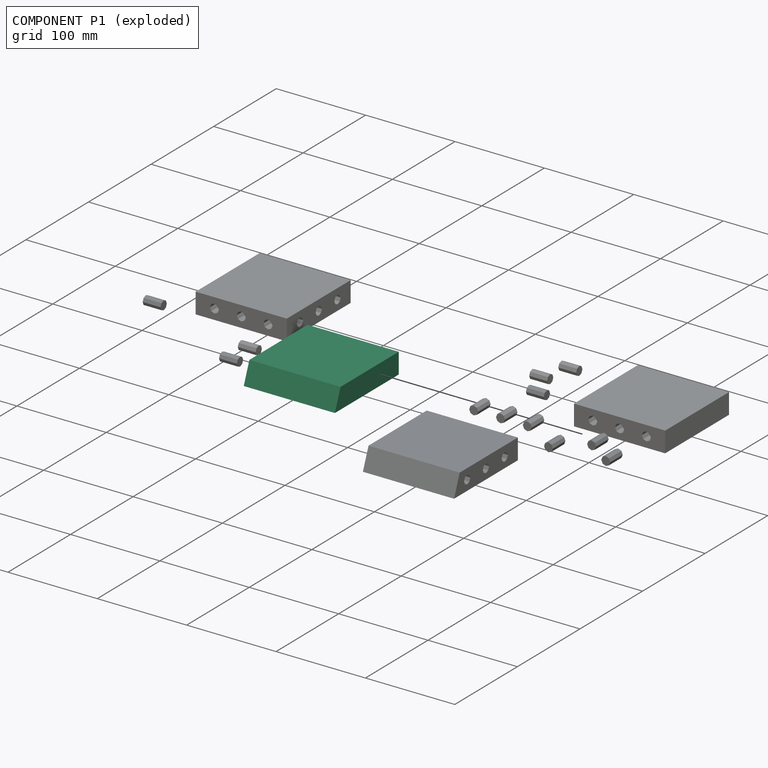
[diagram: component P1 — exploded]
COMPONENT P1 — recipe-attached (CADFS 00762722, mesh-verified: the recipe's output STEP matches this component's geometry to below the mesh-comparison resolution (tessellation chordal tolerance ~0.219 mm)).
Held by: FASTENED mate "Fastened 14" to P8.
Construction recipe (FeatureScript — the CAD program that rebuilds this solid; sketch coordinates are in the units given by the * unit suffixes, e.g. mm):

FeatureScript 1511;
import(path : "onshape/std/geometry.fs", version : "1511.0");
import(path : "onshape/std/common.fs", version : "1511.0");
const mm = millimeter;
const VERTEX = EntityType.VERTEX;
const EDGE = EntityType.EDGE;
const FACE = EntityType.FACE;
const BODY = EntityType.BODY;
function v(x, y){return vector(x, y);}
function OD(order){return orderDisambiguation(order);}
function OSD(set){return originalSetDisambiguation(set);}
function TD(topology){return topologyDisambiguation(topology);}
function TDD(query){return trueDependencyDisambiguation(query);}
function sQuery(a, b, c) {return sketchEntityQuery(a, b, c);}

annotation { "Feature Type Name" : "Feature", "Feature Type Description" : "" }
export const myFeature = defineFeature(function(context is Context, id is Id, definition is map)
    precondition{}
    {
        {
            var Q0;
            Q0=qCreatedBy(makeId("Right.planeOp"),FACE);
            var sketch = newSketch(context, id + "F0", { "sketchPlane" : qUnion([Q0])});
            skLineSegment(sketch, "E0.bottom", {"start": v(51, -11.5) * mm, "end": v(-51, -11.5) * mm});
            skLineSegment(sketch, "E0.top", {"start": v(51, 11.5) * mm, "end": v(-42, 11.5) * mm});
            skLineSegment(sketch, "E0.left", {"start": v(51, -11.5) * mm, "end": v(51, 11.5) * mm});
            skPoint(sketch, "E0.middle", {"position": v(0, 0) * mm});
            skLineSegment(sketch, "E1", {"start": v(-42, 11.5) * mm, "end": v(-51, -11.5) * mm});
            skPoint(sketch, "E0.right.end.orphan", {"position": v(-51, 11.5) * mm});
            skSolve(sketch);
        }
        {
            var Q0;
            Q0 = qSketchRegion(id + "F0", true);
            extrude(context, id + "F1", {"entities" : qUnion([Q0]), "endBound" : BoundingType.SYMMETRIC, "depth" : 102 * mm, "offsetDistance" : 25 * mm});
        }
        {
            var Q0;
            Q0=makeQuery(id+"F1.opExtrude","SWEPT_FACE",FACE,{"disambiguationData":[OSD([sQuery(id+"F0.wireOp",EDGE,"E0.left")])]});
            var sketch = newSketch(context, id + "F2", { "sketchPlane" : qUnion([Q0])});
            skCircle(sketch, "E2.cCircle", {"center": v(0, 0) * mm, "radius": 5 * mm, "construction": true});
            skLineSegment(sketch, "E2.0", {"start": v(0, -5) * mm, "end": v(-3.54, -3.54) * mm});
            skLineSegment(sketch, "E2.1", {"start": v(-3.54, -3.54) * mm, "end": v(-5, 0) * mm});
            skLineSegment(sketch, "E2.2", {"start": v(-5, 0) * mm, "end": v(-3.54, 3.54) * mm});
            skLineSegment(sketch, "E2.3", {"start": v(-3.54, 3.54) * mm, "end": v(0, 5) * mm});
            skLineSegment(sketch, "E2.4", {"start": v(0, 5) * mm, "end": v(3.54, 3.54) * mm});
            skLineSegment(sketch, "E2.5", {"start": v(3.54, 3.54) * mm, "end": v(5, 0) * mm});
            skLineSegment(sketch, "E2.6", {"start": v(5, 0) * mm, "end": v(3.54, -3.54) * mm});
            skLineSegment(sketch, "E2.7", {"start": v(3.54, -3.54) * mm, "end": v(0, -5) * mm});
            skLineSegment(sketch, "E3.1.0.0", {"start": v(30, 5) * mm, "end": v(33.54, 3.54) * mm});
            skLineSegment(sketch, "E3.1.0.1", {"start": v(33.54, 3.54) * mm, "end": v(35, 0) * mm});
            skLineSegment(sketch, "E3.1.0.2", {"start": v(35, 0) * mm, "end": v(33.54, -3.54) * mm});
            skLineSegment(sketch, "E3.1.0.3", {"start": v(33.54, -3.54) * mm, "end": v(30, -5) * mm});
            skLineSegment(sketch, "E3.1.0.4", {"start": v(30, -5) * mm, "end": v(26.46, -3.54) * mm});
            skLineSegment(sketch, "E3.1.0.5", {"start": v(26.46, -3.54) * mm, "end": v(25, 0) * mm});
            skLineSegment(sketch, "E3.1.0.6", {"start": v(25, 0) * mm, "end": v(26.46, 3.54) * mm});
            skLineSegment(sketch, "E3.1.0.7", {"start": v(26.46, 3.54) * mm, "end": v(30, 5) * mm});
            skLineSegment(sketch, "E3.direction1", {"start": v(0, 5) * mm, "end": v(30, 5) * mm, "construction": true});
            skLineSegment(sketch, "E4.MirrorCS", {"start": v(-26.46, 3.54) * mm, "end": v(-30, 5) * mm});
            skLineSegment(sketch, "E5.MirrorCS", {"start": v(-25, 0) * mm, "end": v(-26.46, 3.54) * mm});
            skLineSegment(sketch, "E6.MirrorCS", {"start": v(-26.46, -3.54) * mm, "end": v(-25, 0) * mm});
            skLineSegment(sketch, "E7.MirrorCS", {"start": v(-30, -5) * mm, "end": v(-26.46, -3.54) * mm});
            skLineSegment(sketch, "E8.MirrorCS", {"start": v(-33.54, -3.54) * mm, "end": v(-30, -5) * mm});
            skLineSegment(sketch, "E9.MirrorCS", {"start": v(-35, 0) * mm, "end": v(-33.54, -3.54) * mm});
            skLineSegment(sketch, "E10.MirrorCS", {"start": v(-33.54, 3.54) * mm, "end": v(-35, 0) * mm});
            skLineSegment(sketch, "E11.MirrorCS", {"start": v(-30, 5) * mm, "end": v(-33.54, 3.54) * mm});
            skSolve(sketch);
        }
        {
            var Q0;
            Q0 = qSketchRegion(id + "F2", true);
            extrude(context, id + "F3", {"entities" : qUnion([Q0]), "operationType" : NewBodyOperationType.REMOVE, "oppositeDirection" : true, "depth" : 10 * mm, "offsetDistance" : 25 * mm});
        }
        {
            var Q0;
            Q0=makeQuery(id+"F1.opExtrude","CAP_FACE",FACE,{"disambiguationData":[OSD([sQuery(id+"F0.wireOp",EDGE,"E0.bottom"),sQuery(id+"F0.wireOp",EDGE,"E0.left"),sQuery(id+"F0.wireOp",EDGE,"E0.top"),sQuery(id+"F0.wireOp",EDGE,"E1")])],"isStart":true});
            var sketch = newSketch(context, id + "F4", { "sketchPlane" : qUnion([Q0])});
            skCircle(sketch, "E12.cCircle", {"center": v(0, 0) * mm, "radius": 5 * mm, "construction": true});
            skLineSegment(sketch, "E12.0", {"start": v(0, -5) * mm, "end": v(-3.54, -3.54) * mm});
            skLineSegment(sketch, "E12.1", {"start": v(-3.54, -3.54) * mm, "end": v(-5, 0) * mm});
            skLineSegment(sketch, "E12.2", {"start": v(-5, 0) * mm, "end": v(-3.54, 3.54) * mm});
            skLineSegment(sketch, "E12.3", {"start": v(-3.54, 3.54) * mm, "end": v(0, 5) * mm});
            skLineSegment(sketch, "E12.4", {"start": v(0, 5) * mm, "end": v(3.54, 3.54) * mm});
            skLineSegment(sketch, "E12.5", {"start": v(3.54, 3.54) * mm, "end": v(5, 0) * mm});
            skLineSegment(sketch, "E12.6", {"start": v(5, 0) * mm, "end": v(3.54, -3.54) * mm});
            skLineSegment(sketch, "E12.7", {"start": v(3.54, -3.54) * mm, "end": v(0, -5) * mm});
            skLineSegment(sketch, "E13.1.0.0", {"start": v(30, 5) * mm, "end": v(33.54, 3.54) * mm});
            skLineSegment(sketch, "E13.1.0.1", {"start": v(26.46, 3.54) * mm, "end": v(30, 5) * mm});
            skLineSegment(sketch, "E13.1.0.2", {"start": v(25, 0) * mm, "end": v(26.46, 3.54) * mm});
            skLineSegment(sketch, "E13.1.0.3", {"start": v(26.46, -3.54) * mm, "end": v(25, 0) * mm});
            skLineSegment(sketch, "E13.1.0.4", {"start": v(30, -5) * mm, "end": v(26.46, -3.54) * mm});
            skLineSegment(sketch, "E13.1.0.5", {"start": v(33.54, -3.54) * mm, "end": v(30, -5) * mm});
            skLineSegment(sketch, "E13.1.0.6", {"start": v(35, 0) * mm, "end": v(33.54, -3.54) * mm});
            skLineSegment(sketch, "E13.1.0.7", {"start": v(33.54, 3.54) * mm, "end": v(35, 0) * mm});
            skLineSegment(sketch, "E13.direction1", {"start": v(0, 5) * mm, "end": v(30, 5) * mm, "construction": true});
            skLineSegment(sketch, "E14.MirrorCS", {"start": v(-26.46, 3.54) * mm, "end": v(-30, 5) * mm});
            skLineSegment(sketch, "E15.MirrorCS", {"start": v(-30, 5) * mm, "end": v(-33.54, 3.54) * mm});
            skLineSegment(sketch, "E16.MirrorCS", {"start": v(-33.54, 3.54) * mm, "end": v(-35, 0) * mm});
            skLineSegment(sketch, "E17.MirrorCS", {"start": v(-35, 0) * mm, "end": v(-33.54, -3.54) * mm});
            skLineSegment(sketch, "E18.MirrorCS", {"start": v(-33.54, -3.54) * mm, "end": v(-30, -5) * mm});
            skLineSegment(sketch, "E19.MirrorCS", {"start": v(-30, -5) * mm, "end": v(-26.46, -3.54) * mm});
            skLineSegment(sketch, "E20.MirrorCS", {"start": v(-26.46, -3.54) * mm, "end": v(-25, 0) * mm});
            skLineSegment(sketch, "E21.MirrorCS", {"start": v(-25, 0) * mm, "end": v(-26.46, 3.54) * mm});
            skSolve(sketch);
        }
        {
            var Q0;
            Q0 = qSketchRegion(id + "F4", true);
            extrude(context, id + "F5", {"entities" : qUnion([Q0]), "operationType" : NewBodyOperationType.REMOVE, "oppositeDirection" : true, "depth" : 10 * mm, "offsetDistance" : 25 * mm});
        }
    });
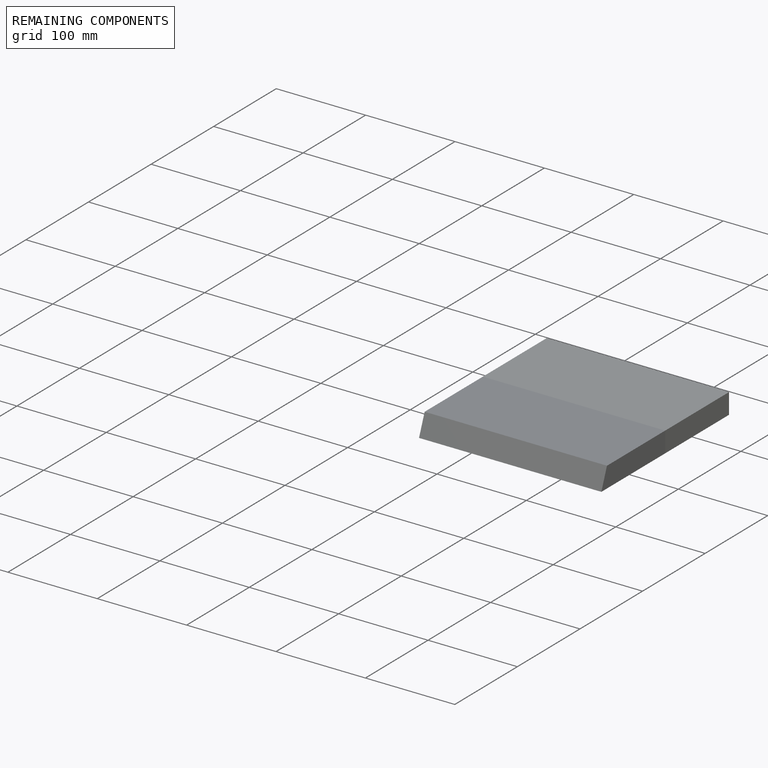
[diagram: remaining components — assembled]
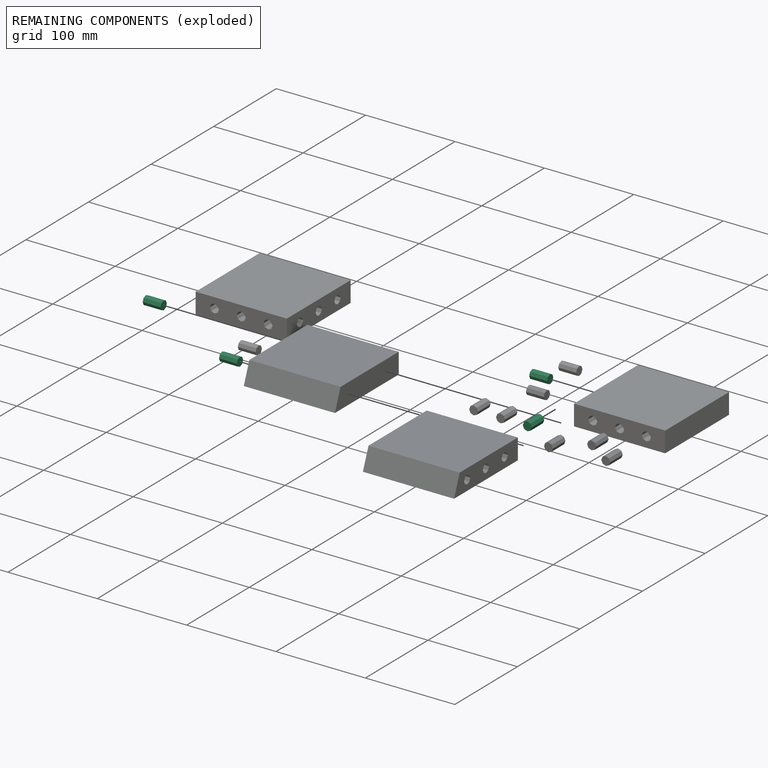
[diagram: remaining components — exploded]
REMAINING COMPONENTS (grouped) — the 4 components below fall outside the per-component tour by the significance rule stated above; both spotlight views highlight the whole group.
  P12: bounding box 20.0 x 10.0 x 10.0 mm, volume 1414 mm^3. Recipe-attached (CADFS 00762725; recipe not printed under the significance rule). Held by: FASTENED mate "Fastened 7" to P6; FASTENED mate "Fastened 5" to P0.
  P14: bounding box 20.0 x 10.0 x 10.0 mm, volume 1414 mm^3. Recipe-attached (CADFS 00762725; recipe not printed under the significance rule). Held by: FASTENED mate "Fastened 8" to P6.
  P13: bounding box 20.0 x 10.0 x 10.0 mm, volume 1414 mm^3. Recipe-attached (CADFS 00762725; recipe not printed under the significance rule). Held by: FASTENED mate "Fastened 13" to P3.
  P15: bounding box 20.0 x 10.0 x 10.0 mm, volume 1414 mm^3. Recipe-attached (CADFS 00762725; recipe not printed under the significance rule). Held by: FASTENED mate "Fastened 11" to P3.
PROVENANCE & LICENSES
Assembly (occurrences, transforms, mates, per-part STEP geometry): AutoMate dataset, Zenodo record 7776208, CC0.
Construction recipes: CADFS (HuggingFace VladPyatov/CADFS, CC-BY-4.0, layered over the ABC dataset), FeatureScript reconstruction programs keyed by ABC model id.
Join: ABC meta listings map ABC model id -> Onshape documentId; within a shared document, parts are matched by geometric signature (bounding-box dims + volume at 0.1% relative tolerance, exact B-rep face/solid counts).
Verification: 16 of this assembly's 16 components carry a recipe attachment, and every attachment is mesh-verified: the CADFS STEP and the AutoMate member STEP were compared as meshes in their shared local frame (symmetric sampled-point-to-mesh distance); worst across the 16 attachments: below the mesh-comparison resolution (tessellation chordal tolerance ~0.219 mm) on a 146 mm part.
Renders: orthographic iso camera (az 35 / el 25); the floor grid conveys scale (grid pitch printed in each image; no ruler). In the exploded view each component is displaced by its stored offset vector: the offsets alone carry the explosion direction (mate normal/axis signs are not orientation cues and do not encode it), and separation distances are assigned per mate-chain, not proportionally to assembly-order depth.
